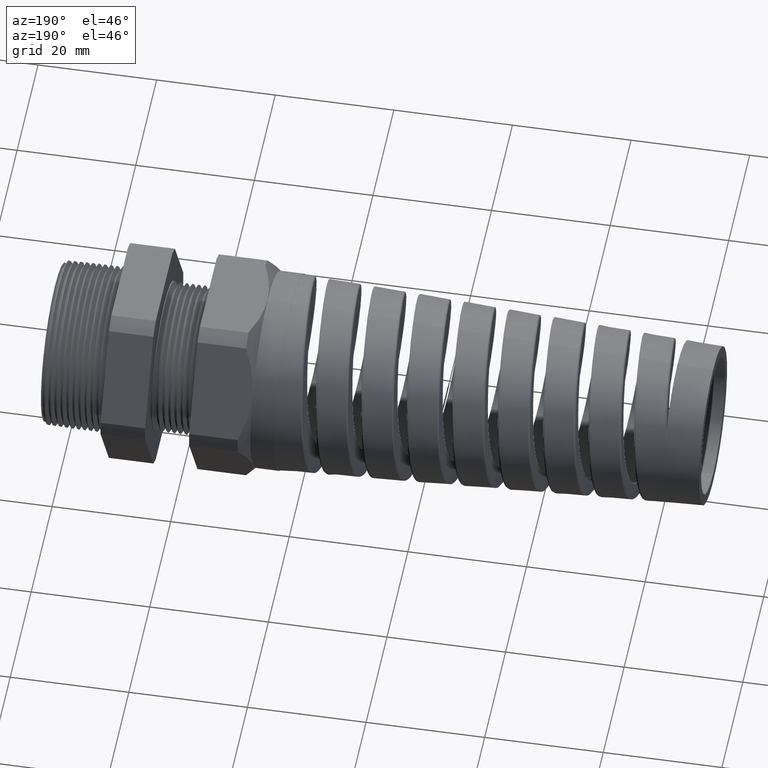
[diagram: clean part render]
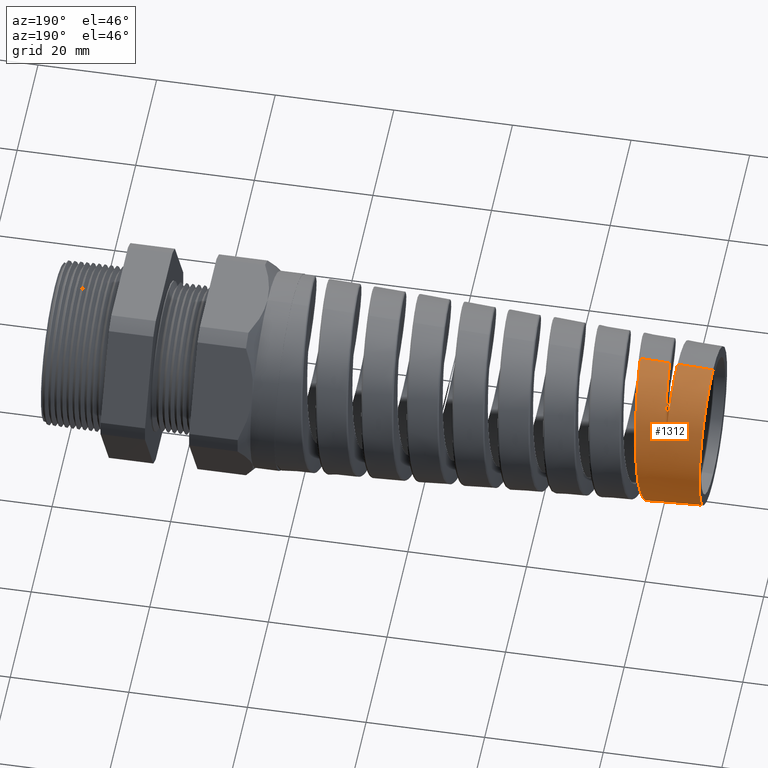
[diagram: same view with one face highlighted and labeled with its STEP entity id]
A machine part, auxiliary view. The second image highlights one B-rep face of the part: STEP entity #1312.
In plain terms, the highlighted conical surface has half-angle 2.5 deg.
Its self-contained STEP definition (entity closure, byte-faithful):
#1231 = ORIENTED_EDGE ( 'NONE', *, *, #1232, .F. ) ;
#1232 = EDGE_CURVE ( 'NONE', #1233, #1234, #8917, .T. ) ;
#1233 = VERTEX_POINT ( 'NONE', #8912 ) ;
#1234 = VERTEX_POINT ( 'NONE', #8911 ) ;
#1235 = ORIENTED_EDGE ( 'NONE', *, *, #1236, .T. ) ;
#1236 = EDGE_CURVE ( 'NONE', #1233, #1237, #8910, .T. ) ;
#1237 = VERTEX_POINT ( 'NONE', #8906 ) ;
#1238 = ORIENTED_EDGE ( 'NONE', *, *, #1239, .T. ) ;
#1239 = EDGE_CURVE ( 'NONE', #1237, #1240, #8904, .T. ) ;
#1240 = VERTEX_POINT ( 'NONE', #8905 ) ;
#1241 = ORIENTED_EDGE ( 'NONE', *, *, #1242, .T. ) ;
#1242 = EDGE_CURVE ( 'NONE', #1240, #1243, #8898, .T. ) ;
#1243 = VERTEX_POINT ( 'NONE', #8899 ) ;
#1244 = VERTEX_POINT ( 'NONE', #8895 ) ;
#1245 = ORIENTED_EDGE ( 'NONE', *, *, #1246, .T. ) ;
#1246 = EDGE_CURVE ( 'NONE', #1243, #1244, #8894, .T. ) ;
#1247 = ORIENTED_EDGE ( 'NONE', *, *, #1248, .T. ) ;
#1248 = EDGE_CURVE ( 'NONE', #1244, #1249, #11801, .T. ) ;
#1249 = VERTEX_POINT ( 'NONE', #11802 ) ;
#1250 = ORIENTED_EDGE ( 'NONE', *, *, #1251, .F. ) ;
#1251 = EDGE_CURVE ( 'NONE', #1234, #1249, #11828, .T. ) ;
#1312 = ADVANCED_FACE ( 'NONE', ( #12044 ), #12043, .T. ) ;
#1313 = EDGE_LOOP ( 'NONE', ( #1231, #1235, #1238, #1241, #1245, #1247, #1250 ) ) ;
#8873 = CARTESIAN_POINT ( 'NONE',  ( -3.961292754658630500, 1.633621814543850200E-015, 0.5386081526959481900 ) ) ;
#8874 = CARTESIAN_POINT ( 'NONE',  ( -3.965669072913475400, 0.04935224937886859000, 0.5384170785144736200 ) ) ;
#8875 = CARTESIAN_POINT ( 'NONE',  ( -3.969970737066266200, 0.09783083145527755900, 0.5315709963755875800 ) ) ;
#8876 = CARTESIAN_POINT ( 'NONE',  ( -3.975460956707876900, 0.1573092824498900400, 0.5146256334341836600 ) ) ;
#8877 = CARTESIAN_POINT ( 'NONE',  ( -3.976564961412828700, 0.1691491508509397100, 0.5108048156912711200 ) ) ;
#8878 = CARTESIAN_POINT ( 'NONE',  ( -3.978755306408611000, 0.1923481042825281000, 0.5024264339269379800 ) ) ;
#8879 = CARTESIAN_POINT ( 'NONE',  ( -3.979845908991683300, 0.2037543375801357500, 0.4978566174703461000 ) ) ;
#8880 = CARTESIAN_POINT ( 'NONE',  ( -3.983111795537674500, 0.2374030995003846600, 0.4830260661815037900 ) ) ;
#8881 = CARTESIAN_POINT ( 'NONE',  ( -3.985281224863873400, 0.2590782803619660100, 0.4716493323349784700 ) ) ;
#8882 = CARTESIAN_POINT ( 'NONE',  ( -3.988554245058328900, 0.2904461237216393600, 0.4523381460748905900 ) ) ;
#8883 = CARTESIAN_POINT ( 'NONE',  ( -3.989648411803529800, 0.3007106035762584500, 0.4455254685597968600 ) ) ;
#8884 = CARTESIAN_POINT ( 'NONE',  ( -3.991848510381461600, 0.3208469203033934600, 0.4311308796565079300 ) ) ;
#8885 = CARTESIAN_POINT ( 'NONE',  ( -3.992953141702073200, 0.3307042315143101100, 0.4235543102518788400 ) ) ;
#8886 = CARTESIAN_POINT ( 'NONE',  ( -3.996241385971637700, 0.3592315989672976200, 0.4000222665477915500 ) ) ;
#8887 = CARTESIAN_POINT ( 'NONE',  ( -3.998416251604525400, 0.3770186696348843400, 0.3831599883883723400 ) ) ;
#8888 = CARTESIAN_POINT ( 'NONE',  ( -4.002771582276523100, 0.4101781834873216000, 0.3471373261543901400 ) ) ;
#8889 = CARTESIAN_POINT ( 'NONE',  ( -4.004951954459555100, 0.4255507997980863000, 0.3279770954417125500 ) ) ;
#8890 = CARTESIAN_POINT ( 'NONE',  ( -4.009360673815521600, 0.4537917800367316000, 0.2872784319957302200 ) ) ;
#8891 = DIRECTION ( 'NONE',  ( 0.9990482215818576900, 5.341834311772759500E-018, 0.04361938736533629800 ) ) ;
#8892 = VECTOR ( 'NONE', #8891, 39.37007874015748100 ) ;
#8893 = CARTESIAN_POINT ( 'NONE',  ( -1.409999999999999900, 7.960204194457794200E-017, 0.6499999999999999100 ) ) ;
#8894 = LINE ( 'NONE', #8893, #8892 ) ;
#8895 = CARTESIAN_POINT ( 'NONE',  ( -3.767149950993800000, -4.873150325365011700E-013, 0.5470846105628569500 ) ) ;
#8896 = CARTESIAN_POINT ( 'NONE',  ( -4.011568527436037500, 0.4665185293639769700, 0.2659247726967452500 ) ) ;
#8897 = CARTESIAN_POINT ( 'NONE',  ( -4.013780000000000600, 0.4777182755816202200, 0.2437635086573365400 ) ) ;
#8898 = B_SPLINE_CURVE_WITH_KNOTS ( 'NONE', 3,
 ( #8897, #8896, #8890, #8889, #8888, #8887, #8886, #8885, #8884, #8883, #8882, #8881, #8880, #8879, #8878, #8877, #8876, #8875, #8874, #8873 ),
 .UNSPECIFIED., .F., .F.,
 ( 4, 2, 2, 2, 2, 2, 2, 2, 2, 4 ),
 ( 1.011508913927959000E-017, 0.001895999400525061900, 0.003791998801050113400, 0.005687998201575165100, 0.006635997901837693300, 0.007583997602100218900, 0.009479997002625272000, 0.01042799670288779700, 0.01137599640315032100, 0.01516799520420041700 ),
 .UNSPECIFIED. ) ;
#8899 = CARTESIAN_POINT ( 'NONE',  ( -3.961292754658630500, 1.633621814543850200E-015, 0.5386081526959481900 ) ) ;
#8900 = DIRECTION ( 'NONE',  ( 0.0000000000000000000, 0.0000000000000000000, 1.000000000000000000 ) ) ;
#8901 = DIRECTION ( 'NONE',  ( -1.000000000000000000, 0.0000000000000000000, 0.0000000000000000000 ) ) ;
#8902 = CARTESIAN_POINT ( 'NONE',  ( -4.013780000000000600, 0.0000000000000000000, 0.0000000000000000000 ) ) ;
#8903 = AXIS2_PLACEMENT_3D ( 'NONE', #8902, #8901, #8900 ) ;
#8904 = CIRCLE ( 'NONE', #8903, 0.5363165100736804200 ) ;
#8905 = CARTESIAN_POINT ( 'NONE',  ( -4.013780000000000600, 0.4777182755816202200, 0.2437635086573365400 ) ) ;
#8906 = CARTESIAN_POINT ( 'NONE',  ( -4.013780000000000600, 6.567982973916035100E-017, 0.5363165100736735400 ) ) ;
#8907 = DIRECTION ( 'NONE',  ( 0.9990482215818576900, 5.341834311772759500E-018, 0.04361938736533629800 ) ) ;
#8908 = VECTOR ( 'NONE', #8907, 39.37007874015748100 ) ;
#8909 = CARTESIAN_POINT ( 'NONE',  ( -1.409999999999999900, 7.960204194457794200E-017, 0.6499999999999999100 ) ) ;
#8910 = LINE ( 'NONE', #8909, #8908 ) ;
#8911 = CARTESIAN_POINT ( 'NONE',  ( -4.250000472440945000, 0.0000000000000000000, -0.5260029015126145300 ) ) ;
#8912 = CARTESIAN_POINT ( 'NONE',  ( -4.250000472440945000, 6.611871126819908300E-017, 0.5260029015126145300 ) ) ;
#8913 = DIRECTION ( 'NONE',  ( 0.0000000000000000000, 0.0000000000000000000, 1.000000000000000000 ) ) ;
#8914 = DIRECTION ( 'NONE',  ( -1.000000000000000000, 0.0000000000000000000, 0.0000000000000000000 ) ) ;
#8915 = CARTESIAN_POINT ( 'NONE',  ( -4.250000472440945000, 0.0000000000000000000, 0.0000000000000000000 ) ) ;
#8916 = AXIS2_PLACEMENT_3D ( 'NONE', #8915, #8914, #8913 ) ;
#8917 = CIRCLE ( 'NONE', #8916, 0.5260029015126145300 ) ;
#11758 = CARTESIAN_POINT ( 'NONE',  ( -3.895143620582977900, 0.2405803478622900700, -0.4854469202584847400 ) ) ;
#11759 = CARTESIAN_POINT ( 'NONE',  ( -3.891993484802879000, 0.2721302363679913300, -0.4686488259447835800 ) ) ;
#11760 = CARTESIAN_POINT ( 'NONE',  ( -3.890406574218230300, 0.2876035992330060500, -0.4593950131631462900 ) ) ;
#11761 = CARTESIAN_POINT ( 'NONE',  ( -3.885697376319647000, 0.3320598978489391300, -0.4297332643089695200 ) ) ;
#11762 = CARTESIAN_POINT ( 'NONE',  ( -3.882591880504338900, 0.3594576818835914000, -0.4072682347957835600 ) ) ;
#11763 = CARTESIAN_POINT ( 'NONE',  ( -3.877895138866972700, 0.3972077366424888700, -0.3695628456531083200 ) ) ;
#11764 = CARTESIAN_POINT ( 'NONE',  ( -3.876315814547849100, 0.4092813148431239100, -0.3562568053386322400 ) ) ;
#11765 = CARTESIAN_POINT ( 'NONE',  ( -3.873162970610938900, 0.4320071121210377600, -0.3285563679945003300 ) ) ;
#11766 = CARTESIAN_POINT ( 'NONE',  ( -3.871598428723039400, 0.4426010317032747500, -0.3142476025094239600 ) ) ;
#11767 = CARTESIAN_POINT ( 'NONE',  ( -3.866916860599436400, 0.4721432980140650700, -0.2699882010952297500 ) ) ;
#11768 = CARTESIAN_POINT ( 'NONE',  ( -3.863812618622630300, 0.4888733756149941700, -0.2387170073521051300 ) ) ;
#11769 = CARTESIAN_POINT ( 'NONE',  ( -3.859092861644229700, 0.5093988878984718700, -0.1890991122163474800 ) ) ;
#11770 = CARTESIAN_POINT ( 'NONE',  ( -3.857513429888200100, 0.5154430786355909100, -0.1721492146050931400 ) ) ;
#11771 = CARTESIAN_POINT ( 'NONE',  ( -3.854386445707688400, 0.5257368463514178200, -0.1380797337101251600 ) ) ;
#11772 = CARTESIAN_POINT ( 'NONE',  ( -3.851274593322883400, 0.5343122192471141400, -0.1036653133136433600 ) ) ;
#11773 = CARTESIAN_POINT ( 'NONE',  ( -3.848162579152495200, 0.5394983944891460500, -0.06857326804219893200 ) ) ;
#11774 = CARTESIAN_POINT ( 'NONE',  ( -3.845035891152131400, 0.5429650605083743400, -0.03313874321217692700 ) ) ;
#11775 = CARTESIAN_POINT ( 'NONE',  ( -3.843456661734128100, 0.5438361722363931300, -0.01515067586774172100 ) ) ;
#11776 = CARTESIAN_POINT ( 'NONE',  ( -3.838746342891205200, 0.5437715919835783800, 0.03851645657295651300 ) ) ;
#11777 = CARTESIAN_POINT ( 'NONE',  ( -3.835650814194528900, 0.5402320344376554400, 0.07379921172402308100 ) ) ;
#11778 = CARTESIAN_POINT ( 'NONE',  ( -3.830983168879504400, 0.5298120189985273700, 0.1259913552896631800 ) ) ;
#11779 = CARTESIAN_POINT ( 'NONE',  ( -3.829423297154935600, 0.5254808481352930500, 0.1432658800866445600 ) ) ;
#11780 = CARTESIAN_POINT ( 'NONE',  ( -3.826280182477375100, 0.5150504609830491900, 0.1775603663750798000 ) ) ;
#11781 = CARTESIAN_POINT ( 'NONE',  ( -3.824708118740247200, 0.5089809431693755900, 0.1944550000134739100 ) ) ;
#11782 = CARTESIAN_POINT ( 'NONE',  ( -3.820033087079085300, 0.4885158786631488800, 0.2437158309204065000 ) ) ;
#11783 = CARTESIAN_POINT ( 'NONE',  ( -3.816944535436373800, 0.4718011716167974100, 0.2749562186563674900 ) ) ;
#11784 = CARTESIAN_POINT ( 'NONE',  ( -3.812264048150201900, 0.4421011620877038900, 0.3193966921466905300 ) ) ;
#11785 = CARTESIAN_POINT ( 'NONE',  ( -3.810687223488706800, 0.4313582901278416600, 0.3338781709385181800 ) ) ;
#11786 = CARTESIAN_POINT ( 'NONE',  ( -3.807558380851038500, 0.4086745907839788300, 0.3614950319974359300 ) ) ;
#11787 = CARTESIAN_POINT ( 'NONE',  ( -3.806004180635604400, 0.3967291888606988000, 0.3746576905751827200 ) ) ;
#11788 = CARTESIAN_POINT ( 'NONE',  ( -3.801350447989851200, 0.3591279054225257600, 0.4122544079941863300 ) ) ;
#11789 = CARTESIAN_POINT ( 'NONE',  ( -3.798260781951751300, 0.3317237380498114800, 0.4348153402989370900 ) ) ;
#11790 = CARTESIAN_POINT ( 'NONE',  ( -3.793554289520666000, 0.2869899490862841700, 0.4647582488732803800 ) ) ;
#11791 = CARTESIAN_POINT ( 'NONE',  ( -3.791990776966505500, 0.2716336179121154300, 0.4739694104200606300 ) ) ;
#11792 = CARTESIAN_POINT ( 'NONE',  ( -3.788884108587186700, 0.2403030166526670100, 0.4907488379477079600 ) ) ;
#11793 = CARTESIAN_POINT ( 'NONE',  ( -3.787336902556844600, 0.2242900326964483700, 0.4983430657557837400 ) ) ;
#11794 = CARTESIAN_POINT ( 'NONE',  ( -3.784240366113508900, 0.1915764203486573200, 0.5119550900618667900 ) ) ;
#11795 = CARTESIAN_POINT ( 'NONE',  ( -3.782691210171845100, 0.1748757902685501000, 0.5179729209968411100 ) ) ;
#11796 = CARTESIAN_POINT ( 'NONE',  ( -3.779576552925229600, 0.1407750244783428400, 0.5284018453536375400 ) ) ;
#11797 = CARTESIAN_POINT ( 'NONE',  ( -3.778003102903805000, 0.1232852233486715100, 0.5328253502542449300 ) ) ;
#11798 = CARTESIAN_POINT ( 'NONE',  ( -3.773326847451115500, 0.07077328775799071600, 0.5433901408354028200 ) ) ;
#11799 = CARTESIAN_POINT ( 'NONE',  ( -3.770248524419583800, 0.03550968054343502100, 0.5469493239254474800 ) ) ;
#11800 = CARTESIAN_POINT ( 'NONE',  ( -3.767149950993800000, -4.873150325365011700E-013, 0.5470846105628569500 ) ) ;
#11801 = B_SPLINE_CURVE_WITH_KNOTS ( 'NONE', 3,
 ( #11800, #11799, #11798, #11797, #11796, #11795, #11794, #11793, #11792, #11791, #11790, #11789, #11788, #11787, #11786, #11785, #11784, #11783, #11782, #11781, #11780, #11779, #11778, #11777, #11776, #11775, #11774, #11773, #11772, #11771, #11770, #11769, #11768, #11767, #11766, #11765, #11764, #11763, #11762, #11761, #11760, #11759, #11758, #11834, #11833, #11832, #11831, #11830, #11829 ),
 .UNSPECIFIED., .F., .F.,
 ( 4, 2, 2, 2, 2, 2, 2, 2, 2, 2, 2, 2, 2, 2, 1, 2, 2, 2, 2, 2, 2, 2, 2, 2, 4 ),
 ( 0.7365639899506192200, 0.7392924089413466200, 0.7406566184367103800, 0.7420208279320740200, 0.7433850374274377800, 0.7447492469228014200, 0.7474776659135288200, 0.7488418754088925800, 0.7502060849042562200, 0.7529345038949836200, 0.7542987133903473800, 0.7556629228857110200, 0.7583913418764385300, 0.7597555513718021700, 0.7611197608671659300, 0.7624839703625295700, 0.7638481798578933300, 0.7665765988486207300, 0.7679408083439843700, 0.7693050178393481300, 0.7720334368300755300, 0.7733976463254391700, 0.7747618558208029200, 0.7774902748115303200, 0.7802186938022577200 ),
 .UNSPECIFIED. ) ;
#11802 = CARTESIAN_POINT ( 'NONE',  ( -3.917105090539167600, -8.384131617326589800E-013, -0.5405374277763286300 ) ) ;
#11825 = DIRECTION ( 'NONE',  ( 0.9990482215818576900, 0.0000000000000000000, -0.04361938736533629800 ) ) ;
#11826 = VECTOR ( 'NONE', #11825, 39.37007874015748100 ) ;
#11827 = CARTESIAN_POINT ( 'NONE',  ( -1.409999999999999900, 0.0000000000000000000, -0.6499999999999999100 ) ) ;
#11828 = LINE ( 'NONE', #11827, #11826 ) ;
#11829 = CARTESIAN_POINT ( 'NONE',  ( -3.917105090539167600, -8.384131617326589800E-013, -0.5405374277763286300 ) ) ;
#11830 = CARTESIAN_POINT ( 'NONE',  ( -3.913976354184933300, 0.03543527180301035700, -0.5406740313557215600 ) ) ;
#11831 = CARTESIAN_POINT ( 'NONE',  ( -3.910847675941491600, 0.07089691526825024600, -0.5373437015832175400 ) ) ;
#11832 = CARTESIAN_POINT ( 'NONE',  ( -3.904511926183287200, 0.1413471462868698400, -0.5235311741040523700 ) ) ;
#11833 = CARTESIAN_POINT ( 'NONE',  ( -3.901396335748451800, 0.1753277484728568700, -0.5132635487624022100 ) ) ;
#11834 = CARTESIAN_POINT ( 'NONE',  ( -3.896708519102242800, 0.2244943858115057400, -0.4930118344967637800 ) ) ;
#12039 = DIRECTION ( 'NONE',  ( 0.0000000000000000000, 0.0000000000000000000, -1.000000000000000000 ) ) ;
#12040 = DIRECTION ( 'NONE',  ( 1.000000000000000000, 0.0000000000000000000, 0.0000000000000000000 ) ) ;
#12041 = AXIS2_PLACEMENT_3D ( 'NONE', #12049, #12040, #12039 ) ;
#12043 = CONICAL_SURFACE ( 'NONE', #12041, 0.6499999999999999100, 0.04363323129985853500 ) ;
#12044 = FACE_OUTER_BOUND ( 'NONE', #1313, .T. ) ;
#12049 = CARTESIAN_POINT ( 'NONE',  ( -1.409999999999999900, 0.0000000000000000000, 0.0000000000000000000 ) ) ;